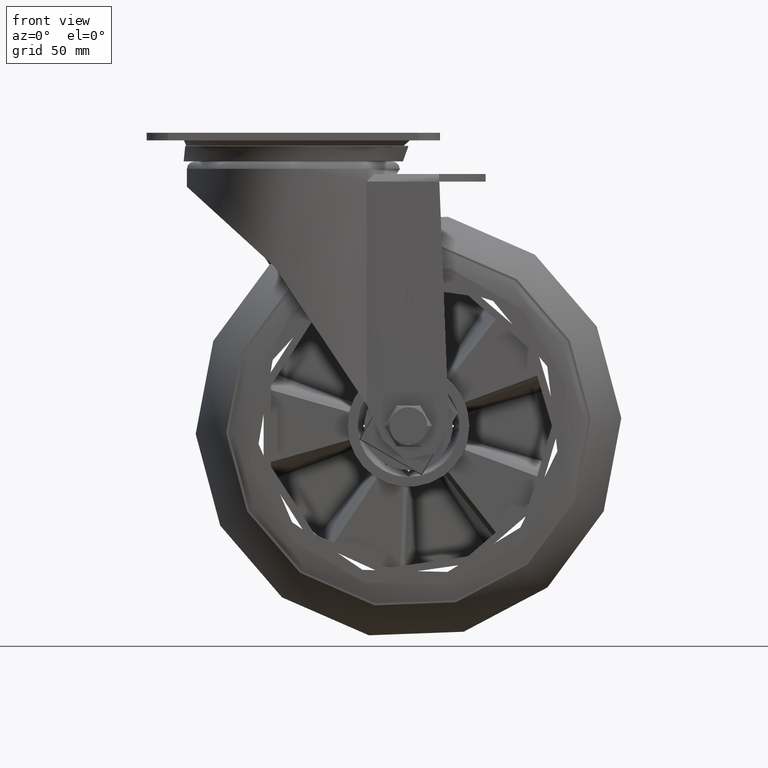
[diagram: clean part render]
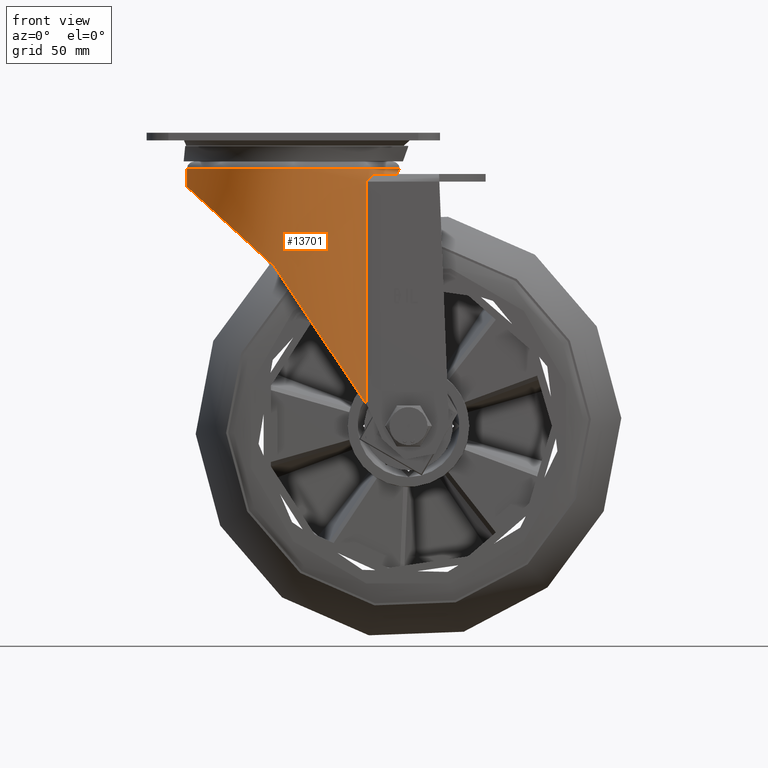
[diagram: same view with one face highlighted and labeled with its STEP entity id]
A machine part, front view. The second image highlights one B-rep face of the part: STEP entity #13701.
In plain terms, the highlighted cylindrical surface (bore or boss wall) has radius 49 mm, axis along (0, 0, -1).
Its self-contained STEP definition (entity closure, byte-faithful):
#1278=B_SPLINE_CURVE_WITH_KNOTS('',3,(#22256,#22257,#22258,#22259,#22260,
#22261,#22262,#22263,#22264,#22265),.UNSPECIFIED.,.F.,.F.,(4,2,2,2,4),(0.,
0.131735543154698,0.263471086309396,0.446881963436535,0.630292840563674),
 .UNSPECIFIED.);
#1279=B_SPLINE_CURVE_WITH_KNOTS('',3,(#22280,#22281,#22282,#22283,#22284,
#22285,#22286,#22287,#22288,#22289),.UNSPECIFIED.,.F.,.F.,(4,2,2,2,4),(-0.630292840563673,
-0.446881963436535,-0.263471086309396,-0.131735543154698,0.),
 .UNSPECIFIED.);
#1298=B_SPLINE_CURVE_WITH_KNOTS('',3,(#22648,#22649,#22650,#22651,#22652,
#22653,#22654,#22655,#22656,#22657,#22658,#22659,#22660,#22661,#22662,#22663,
#22664,#22665,#22666,#22667,#22668,#22669,#22670,#22671,#22672,#22673),
 .UNSPECIFIED.,.F.,.F.,(4,2,2,2,2,2,2,2,2,2,2,2,4),(-33.7066355953507,-32.8329161288491,
-31.4540616062299,-28.6963525609916,-25.9386435157532,-24.8521072401138,
-23.7655709644743,-22.6790346888349,-21.5924984131954,-20.8155587719849,
-20.0386191307744,-19.2616794895638,-18.4847398483533),.UNSPECIFIED.);
#1299=B_SPLINE_CURVE_WITH_KNOTS('',3,(#22677,#22678,#22679,#22680,#22681,
#22682,#22683,#22684,#22685,#22686,#22687,#22688,#22689,#22690,#22691,#22692,
#22693,#22694,#22695,#22696,#22697,#22698,#22699,#22700,#22701,#22702),
 .UNSPECIFIED.,.F.,.F.,(4,2,2,2,2,2,2,2,2,2,2,2,4),(-18.4847398483533,-17.7078002071428,
-16.9308605659323,-16.1539209247217,-15.3769812835112,-14.2904450078718,
-13.2039087322323,-12.1173724565929,-11.0308361809534,-8.27312713571506,
-5.51541809047671,-4.13656356785753,-3.26284406288861),.UNSPECIFIED.);
#2040=FACE_OUTER_BOUND('',#2884,.T.);
#2884=EDGE_LOOP('',(#9893,#9894,#9895,#9896,#9897,#9898,#9899,#9900,#9901,
#9902));
#3850=LINE('',#22496,#4681);
#3861=LINE('',#22646,#4692);
#3862=LINE('',#22675,#4693);
#4681=VECTOR('',#16526,10.);
#4692=VECTOR('',#16545,10.);
#4693=VECTOR('',#16546,49.);
#5489=CIRCLE('',#14857,49.);
#5506=CIRCLE('',#14892,49.);
#6084=VERTEX_POINT('',#22243);
#6086=VERTEX_POINT('',#22248);
#6087=VERTEX_POINT('',#22252);
#6094=VERTEX_POINT('',#22278);
#6116=VERTEX_POINT('',#22495);
#6139=VERTEX_POINT('',#22645);
#6140=VERTEX_POINT('',#22647);
#6141=VERTEX_POINT('',#22674);
#7522=EDGE_CURVE('',#6084,#6086,#5489,.T.);
#7525=EDGE_CURVE('',#6084,#6087,#1278,.F.);
#7532=EDGE_CURVE('',#6094,#6086,#1279,.F.);
#7567=EDGE_CURVE('',#6116,#6087,#3850,.T.);
#7591=EDGE_CURVE('',#6094,#6139,#3861,.T.);
#7592=EDGE_CURVE('',#6139,#6140,#1298,.T.);
#7593=EDGE_CURVE('',#6140,#6141,#3862,.T.);
#7594=EDGE_CURVE('',#6141,#6141,#5506,.T.);
#7595=EDGE_CURVE('',#6140,#6116,#1299,.T.);
#9893=ORIENTED_EDGE('',*,*,#7522,.T.);
#9894=ORIENTED_EDGE('',*,*,#7532,.F.);
#9895=ORIENTED_EDGE('',*,*,#7591,.T.);
#9896=ORIENTED_EDGE('',*,*,#7592,.T.);
#9897=ORIENTED_EDGE('',*,*,#7593,.T.);
#9898=ORIENTED_EDGE('',*,*,#7594,.F.);
#9899=ORIENTED_EDGE('',*,*,#7593,.F.);
#9900=ORIENTED_EDGE('',*,*,#7595,.T.);
#9901=ORIENTED_EDGE('',*,*,#7567,.T.);
#9902=ORIENTED_EDGE('',*,*,#7525,.F.);
#13442=CYLINDRICAL_SURFACE('',#14891,49.);
#13701=ADVANCED_FACE('',(#2040),#13442,.T.);
#14857=AXIS2_PLACEMENT_3D('',#22250,#16447,#16448);
#14891=AXIS2_PLACEMENT_3D('',#22644,#16543,#16544);
#14892=AXIS2_PLACEMENT_3D('',#22676,#16547,#16548);
#16447=DIRECTION('center_axis',(0.,0.,1.));
#16448=DIRECTION('ref_axis',(1.,0.,0.));
#16526=DIRECTION('',(0.,0.,1.));
#16543=DIRECTION('center_axis',(0.,0.,-1.));
#16544=DIRECTION('ref_axis',(1.,0.,0.));
#16545=DIRECTION('',(0.,0.,-1.));
#16546=DIRECTION('',(0.,0.,1.));
#16547=DIRECTION('center_axis',(0.,0.,1.));
#16548=DIRECTION('ref_axis',(-1.,1.22464679914735E-16,0.));
#22243=CARTESIAN_POINT('',(37.1079506305589,-32.,-19.));
#22248=CARTESIAN_POINT('',(37.1079506305589,32.,-19.));
#22250=CARTESIAN_POINT('Origin',(0.,0.,-19.));
#22252=CARTESIAN_POINT('',(33.7749907475931,-35.5,-22.5));
#22256=CARTESIAN_POINT('Ctrl Pts',(33.7749907475931,-35.5,-22.5));
#22257=CARTESIAN_POINT('Ctrl Pts',(33.7749907475931,-35.5,-22.0608815228177));
#22258=CARTESIAN_POINT('Ctrl Pts',(33.867516356422,-35.4124752488968,-21.6110762642486));
#22259=CARTESIAN_POINT('Ctrl Pts',(34.1958587312692,-35.0955170049765,-20.810932885588));
#22260=CARTESIAN_POINT('Ctrl Pts',(34.4296971544126,-34.8670802758889,-20.4593900856269));
#22261=CARTESIAN_POINT('Ctrl Pts',(35.008738658068,-34.2872520991695,-19.8020960854189));
#22262=CARTESIAN_POINT('Ctrl Pts',(35.4182958169782,-33.8663968361621,-19.4975415200234));
#22263=CARTESIAN_POINT('Ctrl Pts',(36.2682962410604,-32.9545019837756,-19.0960140801809));
#22264=CARTESIAN_POINT('Ctrl Pts',(36.7086888572209,-32.462993317928,-19.));
#22265=CARTESIAN_POINT('Ctrl Pts',(37.1079506305589,-32.,-19.));
#22278=CARTESIAN_POINT('',(33.7749907475931,35.5,-22.5));
#22280=CARTESIAN_POINT('Ctrl Pts',(37.1079506305589,32.,-19.));
#22281=CARTESIAN_POINT('Ctrl Pts',(36.708688857221,32.462993317928,-19.));
#22282=CARTESIAN_POINT('Ctrl Pts',(36.2682962410604,32.9545019837756,-19.0960140801809));
#22283=CARTESIAN_POINT('Ctrl Pts',(35.4182958169782,33.8663968361621,-19.4975415200234));
#22284=CARTESIAN_POINT('Ctrl Pts',(35.008738658068,34.2872520991695,-19.8020960854189));
#22285=CARTESIAN_POINT('Ctrl Pts',(34.4296971544126,34.8670802758889,-20.4593900856269));
#22286=CARTESIAN_POINT('Ctrl Pts',(34.1958587312692,35.0955170049765,-20.810932885588));
#22287=CARTESIAN_POINT('Ctrl Pts',(33.867516356422,35.4124752488968,-21.6110762642486));
#22288=CARTESIAN_POINT('Ctrl Pts',(33.7749907475931,35.5,-22.0608815228177));
#22289=CARTESIAN_POINT('Ctrl Pts',(33.7749907475931,35.5,-22.5));
#22495=CARTESIAN_POINT('',(33.7749907476629,-35.4999999999765,-125.181929444194));
#22496=CARTESIAN_POINT('',(33.7749907475931,-35.5,-13.1681681984991));
#22644=CARTESIAN_POINT('Origin',(0.,0.,-13.1681681984991));
#22645=CARTESIAN_POINT('',(33.7749907476629,35.4999999999765,-125.181929444194));
#22646=CARTESIAN_POINT('',(33.7749907475931,35.5,-13.1681681984991));
#22647=CARTESIAN_POINT('',(-49.,2.44527314559844E-15,-24.8542126444744));
#22648=CARTESIAN_POINT('Ctrl Pts',(33.7749907476443,35.4999999999513,-125.181929444191));
#22649=CARTESIAN_POINT('Ctrl Pts',(32.5614588819657,36.6545641558758,-122.65732519636));
#22650=CARTESIAN_POINT('Ctrl Pts',(31.2913626821612,37.7446245533889,-120.115244151421));
#22651=CARTESIAN_POINT('Ctrl Pts',(27.8743648009841,40.3857448058822,-113.542550339515));
#22652=CARTESIAN_POINT('Ctrl Pts',(25.6449244029292,41.8393427594367,-109.501321665697));
#22653=CARTESIAN_POINT('Ctrl Pts',(18.5656438270791,45.6627623971354,-97.4265839204206));
#22654=CARTESIAN_POINT('Ctrl Pts',(13.3317748664681,47.4917773394887,-89.4674087568329));
#22655=CARTESIAN_POINT('Ctrl Pts',(2.12390271783417,49.2817832564204,-74.2384112459558));
#22656=CARTESIAN_POINT('Ctrl Pts',(-3.84952518835543,49.2469785195663,-66.9686599814269));
#22657=CARTESIAN_POINT('Ctrl Pts',(-12.3820711358701,47.4736927708945,-57.574322062156));
#22658=CARTESIAN_POINT('Ctrl Pts',(-14.9367947253023,46.7509589346629,-54.8701192271866));
#22659=CARTESIAN_POINT('Ctrl Pts',(-20.1390662618645,44.7568766643116,-49.5892788026858));
#22660=CARTESIAN_POINT('Ctrl Pts',(-22.786366956235,43.4847725187942,-47.0126830309684));
#22661=CARTESIAN_POINT('Ctrl Pts',(-27.960223956764,40.3530680468516,-42.1675034257967));
#22662=CARTESIAN_POINT('Ctrl Pts',(-30.4890189319026,38.4911258079877,-39.8961817390759));
#22663=CARTESIAN_POINT('Ctrl Pts',(-35.2158797746582,34.2197144151907,-35.7877286190074));
#22664=CARTESIAN_POINT('Ctrl Pts',(-37.4132153431886,31.8097880378511,-33.9502323734116));
#22665=CARTESIAN_POINT('Ctrl Pts',(-40.7417620396458,27.3227837345144,-31.2352047961001));
#22666=CARTESIAN_POINT('Ctrl Pts',(-42.0800960488173,25.2351252598038,-30.1671753916662));
#22667=CARTESIAN_POINT('Ctrl Pts',(-44.4793922011234,20.7154459434836,-28.2829895730277));
#22668=CARTESIAN_POINT('Ctrl Pts',(-45.5398937018669,18.2832674332834,-27.4666248269634));
#22669=CARTESIAN_POINT('Ctrl Pts',(-47.2599900726682,13.2156463802747,-26.155753196786));
#22670=CARTESIAN_POINT('Ctrl Pts',(-47.920762928375,10.5757503769438,-25.6599199513114));
#22671=CARTESIAN_POINT('Ctrl Pts',(-48.7908649342869,5.26284287353149,-25.0091464676826));
#22672=CARTESIAN_POINT('Ctrl Pts',(-49.,2.58979880403507,-24.8542126444744));
#22673=CARTESIAN_POINT('Ctrl Pts',(-49.,-1.11022302462516E-15,-24.8542126444744));
#22674=CARTESIAN_POINT('',(-49.,-6.00076931582203E-15,-16.6681681984991));
#22675=CARTESIAN_POINT('',(-49.,6.00076931582203E-15,-13.1681681984991));
#22676=CARTESIAN_POINT('Origin',(0.,0.,-16.6681681984991));
#22677=CARTESIAN_POINT('Ctrl Pts',(-49.,5.55111512312578E-16,-24.8542126444744));
#22678=CARTESIAN_POINT('Ctrl Pts',(-49.,-2.58979880403507,-24.8542126444744));
#22679=CARTESIAN_POINT('Ctrl Pts',(-48.7908649342869,-5.26284287353149,
-25.0091464676826));
#22680=CARTESIAN_POINT('Ctrl Pts',(-47.920762928375,-10.5757503769438,-25.6599199513114));
#22681=CARTESIAN_POINT('Ctrl Pts',(-47.2599900726682,-13.2156463802747,
-26.155753196786));
#22682=CARTESIAN_POINT('Ctrl Pts',(-45.5398937018669,-18.2832674332834,
-27.4666248269634));
#22683=CARTESIAN_POINT('Ctrl Pts',(-44.4793922011234,-20.7154459434836,
-28.2829895730277));
#22684=CARTESIAN_POINT('Ctrl Pts',(-42.0800960488172,-25.2351252598039,
-30.1671753916662));
#22685=CARTESIAN_POINT('Ctrl Pts',(-40.7417620396458,-27.3227837345144,
-31.2352047961002));
#22686=CARTESIAN_POINT('Ctrl Pts',(-37.4132153431886,-31.8097880378512,
-33.9502323734116));
#22687=CARTESIAN_POINT('Ctrl Pts',(-35.2158797746581,-34.2197144151908,
-35.7877286190074));
#22688=CARTESIAN_POINT('Ctrl Pts',(-30.4890189319026,-38.4911258079878,
-39.8961817390759));
#22689=CARTESIAN_POINT('Ctrl Pts',(-27.960223956764,-40.3530680468516,-42.1675034257967));
#22690=CARTESIAN_POINT('Ctrl Pts',(-22.786366956235,-43.4847725187942,-47.0126830309684));
#22691=CARTESIAN_POINT('Ctrl Pts',(-20.1390662618645,-44.7568766643116,
-49.5892788026858));
#22692=CARTESIAN_POINT('Ctrl Pts',(-14.9367947253023,-46.7509589346629,
-54.8701192271866));
#22693=CARTESIAN_POINT('Ctrl Pts',(-12.3820711358701,-47.4736927708945,
-57.574322062156));
#22694=CARTESIAN_POINT('Ctrl Pts',(-3.84952518835539,-49.2469785195663,
-66.968659981427));
#22695=CARTESIAN_POINT('Ctrl Pts',(2.12390271783423,-49.2817832564204,-74.2384112459558));
#22696=CARTESIAN_POINT('Ctrl Pts',(13.3317748664682,-47.4917773394887,-89.467408756833));
#22697=CARTESIAN_POINT('Ctrl Pts',(18.5656438270791,-45.6627623971354,-97.4265839204206));
#22698=CARTESIAN_POINT('Ctrl Pts',(25.6449244029292,-41.8393427594367,-109.501321665697));
#22699=CARTESIAN_POINT('Ctrl Pts',(27.8743648009841,-40.3857448058822,-113.542550339515));
#22700=CARTESIAN_POINT('Ctrl Pts',(31.2913627405134,-37.7446245082863,-120.115244263663));
#22701=CARTESIAN_POINT('Ctrl Pts',(32.5614588415298,-36.6545641943469,-122.657325112238));
#22702=CARTESIAN_POINT('Ctrl Pts',(33.7749907476443,-35.4999999999513,-125.181929444191));